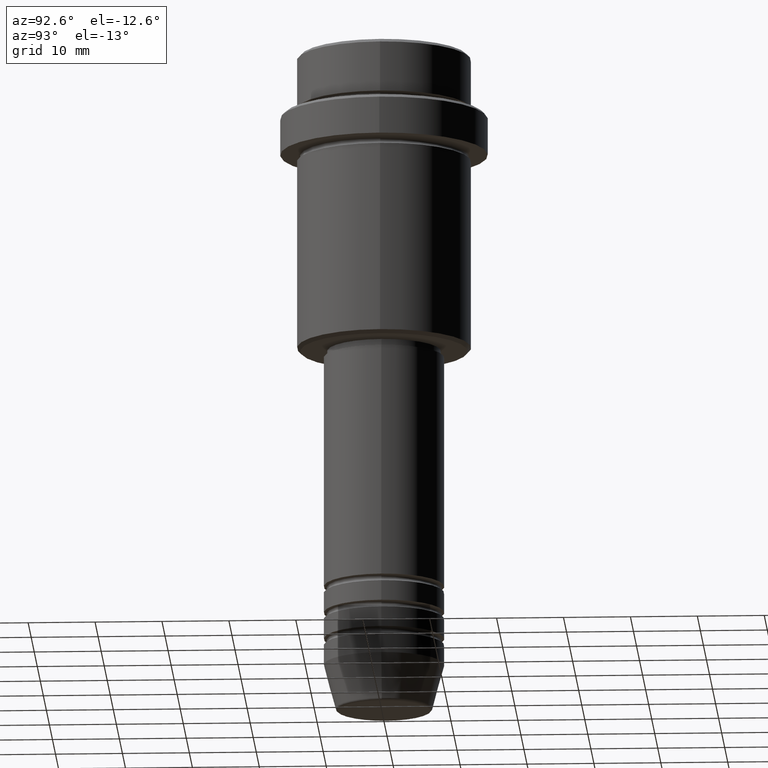
[diagram: clean part render]
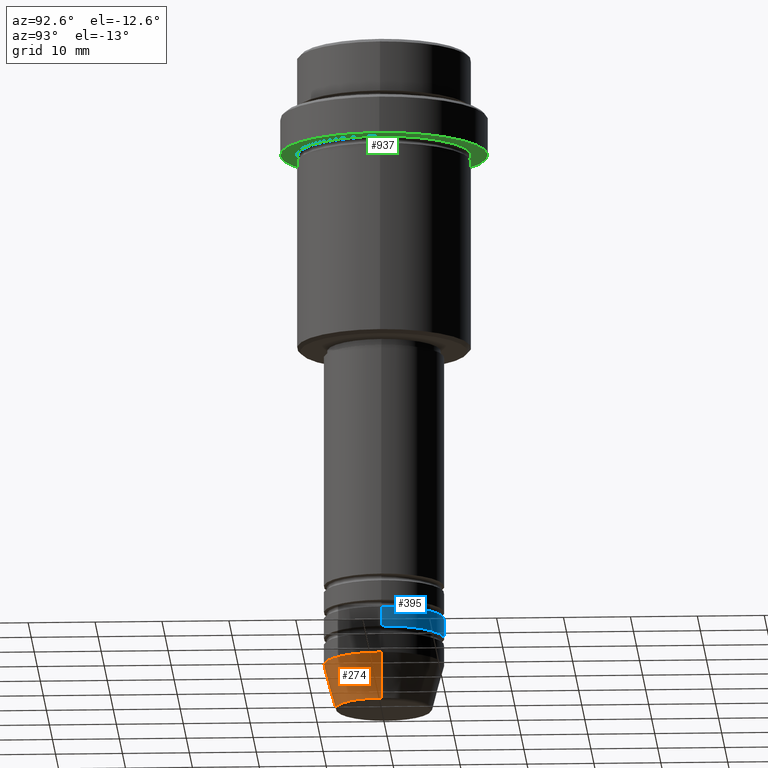
[diagram: same view with three faces highlighted in distinct colors, each labeled with its STEP entity id]
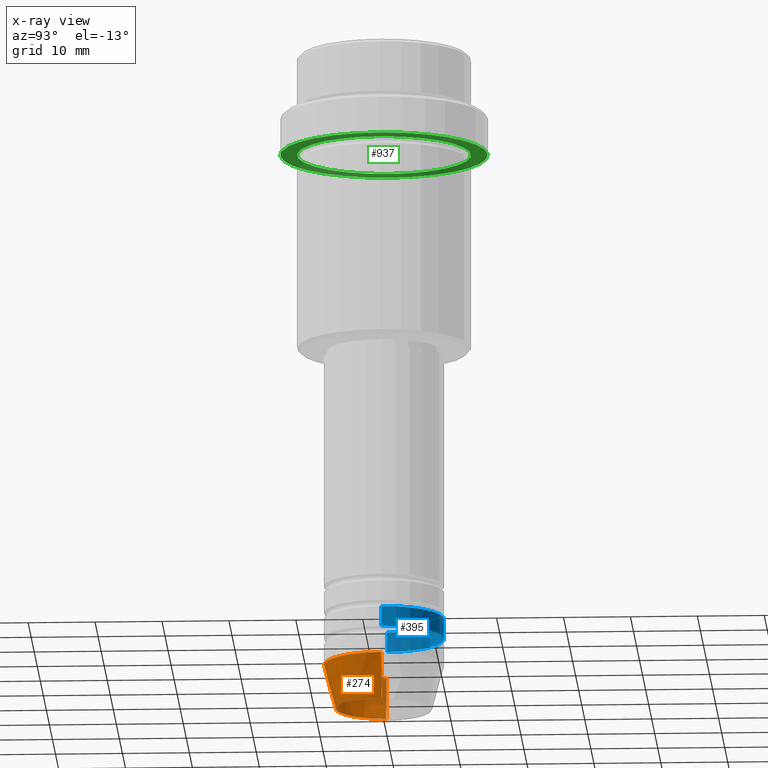
[diagram: x-ray of the same camera — body ghosted, the three highlighted faces saturated]
A machine part, auxiliary view with three faces highlighted in distinct colors.
The next image is the same camera in x-ray (body ghosted, the three faces saturated) — at least one of them is partly hidden behind the body in this view.
Their STEP definitions:

[orange] entity #274 — the highlighted conical surface has half-angle 15 deg.
#31 = DIRECTION ( 'NONE',  ( 0.2588190451025213501, 0.000000000000000000, 0.9659258262890680902 ) ) ;
#36 = VECTOR ( 'NONE', #426, 1000.000000000000000 ) ;
#47 = CARTESIAN_POINT ( 'NONE',  ( 9.000000000000000000, 0.000000000000000000, -93.00000000000000000 ) ) ;
#84 = DIRECTION ( 'NONE',  ( -0.000000000000000000, -0.000000000000000000, 1.000000000000000000 ) ) ;
#123 = ORIENTED_EDGE ( 'NONE', *, *, #322, .F. ) ;
#189 = VERTEX_POINT ( 'NONE', #350 ) ;
#211 = ORIENTED_EDGE ( 'NONE', *, *, #1098, .T. ) ;
#274 = ADVANCED_FACE ( 'NONE', ( #423 ), #1089, .T. ) ;
#294 = CARTESIAN_POINT ( 'NONE',  ( -7.223655072137189492, 9.934123627281765110E-16, -99.62940952255127058 ) ) ;
#318 = CARTESIAN_POINT ( 'NONE',  ( 0.000000000000000000, 0.000000000000000000, -93.00000000000000000 ) ) ;
#322 = EDGE_CURVE ( 'NONE', #1259, #189, #851, .T. ) ;
#333 = DIRECTION ( 'NONE',  ( -0.000000000000000000, -0.000000000000000000, 1.000000000000000000 ) ) ;
#350 = CARTESIAN_POINT ( 'NONE',  ( -9.000000000000000000, 1.102182119232617714E-15, -93.00000000000000000 ) ) ;
#386 = ORIENTED_EDGE ( 'NONE', *, *, #903, .T. ) ;
#423 = FACE_OUTER_BOUND ( 'NONE', #830, .T. ) ;
#426 = DIRECTION ( 'NONE',  ( -0.2588190451025213501, 3.169619151431772337E-17, 0.9659258262890680902 ) ) ;
#442 = DIRECTION ( 'NONE',  ( 1.000000000000000000, 0.000000000000000000, 0.000000000000000000 ) ) ;
#526 = DIRECTION ( 'NONE',  ( 1.000000000000000000, 0.000000000000000000, 0.000000000000000000 ) ) ;
#553 = AXIS2_PLACEMENT_3D ( 'NONE', #634, #84, #526 ) ;
#565 = DIRECTION ( 'NONE',  ( -0.000000000000000000, -0.000000000000000000, 1.000000000000000000 ) ) ;
#574 = CIRCLE ( 'NONE', #1367, 7.223655072137188604 ) ;
#634 = CARTESIAN_POINT ( 'NONE',  ( 0.000000000000000000, 0.000000000000000000, -93.00000000000000000 ) ) ;
#714 = CIRCLE ( 'NONE', #553, 9.000000000000000000 ) ;
#732 = VECTOR ( 'NONE', #31, 1000.000000000000000 ) ;
#742 = CARTESIAN_POINT ( 'NONE',  ( 7.223655072137188604, 0.000000000000000000, -99.62940952255127058 ) ) ;
#780 = CARTESIAN_POINT ( 'NONE',  ( 0.000000000000000000, 0.000000000000000000, -99.62940952255127058 ) ) ;
#830 = EDGE_LOOP ( 'NONE', ( #123, #386, #211, #1320 ) ) ;
#839 = AXIS2_PLACEMENT_3D ( 'NONE', #318, #565, #1198 ) ;
#851 = LINE ( 'NONE', #970, #36 ) ;
#900 = LINE ( 'NONE', #47, #732 ) ;
#903 = EDGE_CURVE ( 'NONE', #1259, #1252, #574, .T. ) ;
#970 = CARTESIAN_POINT ( 'NONE',  ( -9.000000000000000000, 1.102182119232617714E-15, -93.00000000000000000 ) ) ;
#1089 = CONICAL_SURFACE ( 'NONE', #839, 9.000000000000000000, 0.2617993877991500740 ) ;
#1098 = EDGE_CURVE ( 'NONE', #1252, #1306, #900, .T. ) ;
#1198 = DIRECTION ( 'NONE',  ( 1.000000000000000000, 0.000000000000000000, 0.000000000000000000 ) ) ;
#1252 = VERTEX_POINT ( 'NONE', #742 ) ;
#1259 = VERTEX_POINT ( 'NONE', #294 ) ;
#1306 = VERTEX_POINT ( 'NONE', #1389 ) ;
#1312 = EDGE_CURVE ( 'NONE', #189, #1306, #714, .T. ) ;
#1320 = ORIENTED_EDGE ( 'NONE', *, *, #1312, .F. ) ;
#1367 = AXIS2_PLACEMENT_3D ( 'NONE', #780, #333, #442 ) ;
#1389 = CARTESIAN_POINT ( 'NONE',  ( 9.000000000000000000, 0.000000000000000000, -93.00000000000000000 ) ) ;

[blue] entity #395 — the highlighted cylindrical surface (partial cylindrical patch) has radius 9 mm, axis along (-0, -0, 1).
#91 = DIRECTION ( 'NONE',  ( 1.000000000000000000, 0.000000000000000000, 0.000000000000000000 ) ) ;
#190 = DIRECTION ( 'NONE',  ( -0.000000000000000000, -0.000000000000000000, 1.000000000000000000 ) ) ;
#270 = ORIENTED_EDGE ( 'NONE', *, *, #1308, .T. ) ;
#319 = VECTOR ( 'NONE', #1041, 1000.000000000000000 ) ;
#391 = VERTEX_POINT ( 'NONE', #739 ) ;
#395 = ADVANCED_FACE ( 'NONE', ( #513 ), #507, .T. ) ;
#419 = DIRECTION ( 'NONE',  ( -0.000000000000000000, -0.000000000000000000, 1.000000000000000000 ) ) ;
#465 = EDGE_LOOP ( 'NONE', ( #270, #1156, #960, #573 ) ) ;
#507 = CYLINDRICAL_SURFACE ( 'NONE', #521, 9.000000000000000000 ) ;
#513 = FACE_OUTER_BOUND ( 'NONE', #465, .T. ) ;
#516 = LINE ( 'NONE', #949, #319 ) ;
#521 = AXIS2_PLACEMENT_3D ( 'NONE', #963, #419, #835 ) ;
#568 = EDGE_CURVE ( 'NONE', #783, #391, #672, .T. ) ;
#573 = ORIENTED_EDGE ( 'NONE', *, *, #1283, .F. ) ;
#643 = VERTEX_POINT ( 'NONE', #1013 ) ;
#647 = CARTESIAN_POINT ( 'NONE',  ( -9.000000000000000000, 1.102182119232617714E-15, -88.99999999999988631 ) ) ;
#672 = LINE ( 'NONE', #787, #1065 ) ;
#684 = EDGE_CURVE ( 'NONE', #643, #391, #1212, .T. ) ;
#739 = CARTESIAN_POINT ( 'NONE',  ( -9.000000000000000000, 1.102182119232617714E-15, -85.99999999999988631 ) ) ;
#783 = VERTEX_POINT ( 'NONE', #647 ) ;
#787 = CARTESIAN_POINT ( 'NONE',  ( -9.000000000000000000, 1.102182119232617714E-15, 0.000000000000000000 ) ) ;
#800 = CIRCLE ( 'NONE', #984, 9.000000000000000000 ) ;
#822 = DIRECTION ( 'NONE',  ( -0.000000000000000000, -0.000000000000000000, 1.000000000000000000 ) ) ;
#835 = DIRECTION ( 'NONE',  ( 1.000000000000000000, 0.000000000000000000, 0.000000000000000000 ) ) ;
#883 = DIRECTION ( 'NONE',  ( -0.000000000000000000, -0.000000000000000000, 1.000000000000000000 ) ) ;
#949 = CARTESIAN_POINT ( 'NONE',  ( 9.000000000000000000, 0.000000000000000000, 0.000000000000000000 ) ) ;
#960 = ORIENTED_EDGE ( 'NONE', *, *, #684, .F. ) ;
#963 = CARTESIAN_POINT ( 'NONE',  ( 0.000000000000000000, 0.000000000000000000, 0.000000000000000000 ) ) ;
#984 = AXIS2_PLACEMENT_3D ( 'NONE', #1177, #190, #91 ) ;
#1013 = CARTESIAN_POINT ( 'NONE',  ( 9.000000000000000000, 0.000000000000000000, -85.99999999999988631 ) ) ;
#1017 = CARTESIAN_POINT ( 'NONE',  ( 0.000000000000000000, 0.000000000000000000, -85.99999999999988631 ) ) ;
#1041 = DIRECTION ( 'NONE',  ( -0.000000000000000000, -0.000000000000000000, 1.000000000000000000 ) ) ;
#1043 = AXIS2_PLACEMENT_3D ( 'NONE', #1017, #822, #1258 ) ;
#1065 = VECTOR ( 'NONE', #883, 1000.000000000000000 ) ;
#1156 = ORIENTED_EDGE ( 'NONE', *, *, #568, .T. ) ;
#1177 = CARTESIAN_POINT ( 'NONE',  ( 0.000000000000000000, 0.000000000000000000, -88.99999999999988631 ) ) ;
#1182 = CARTESIAN_POINT ( 'NONE',  ( 9.000000000000000000, 0.000000000000000000, -88.99999999999988631 ) ) ;
#1212 = CIRCLE ( 'NONE', #1043, 9.000000000000000000 ) ;
#1214 = VERTEX_POINT ( 'NONE', #1182 ) ;
#1258 = DIRECTION ( 'NONE',  ( 1.000000000000000000, 0.000000000000000000, 0.000000000000000000 ) ) ;
#1283 = EDGE_CURVE ( 'NONE', #1214, #643, #516, .T. ) ;
#1308 = EDGE_CURVE ( 'NONE', #1214, #783, #800, .T. ) ;

[green] entity #937 — the highlighted planar face has unit normal (0, 0, -1).
#10 = DIRECTION ( 'NONE',  ( -1.000000000000000000, 0.000000000000000000, 0.000000000000000000 ) ) ;
#11 = DIRECTION ( 'NONE',  ( 0.000000000000000000, 0.000000000000000000, -1.000000000000000000 ) ) ;
#13 = ORIENTED_EDGE ( 'NONE', *, *, #260, .T. ) ;
#24 = DIRECTION ( 'NONE',  ( -1.000000000000000000, 0.000000000000000000, -0.000000000000000000 ) ) ;
#81 = CIRCLE ( 'NONE', #406, 15.50000000000000000 ) ;
#82 = VERTEX_POINT ( 'NONE', #323 ) ;
#113 = DIRECTION ( 'NONE',  ( -0.000000000000000000, -0.000000000000000000, 1.000000000000000000 ) ) ;
#129 = AXIS2_PLACEMENT_3D ( 'NONE', #682, #11, #24 ) ;
#177 = CARTESIAN_POINT ( 'NONE',  ( -15.50000000000000000, 1.898202538678397557E-15, -15.00000000000000000 ) ) ;
#199 = CARTESIAN_POINT ( 'NONE',  ( -12.99999999999999645, 0.000000000000000000, -15.00000000000000000 ) ) ;
#220 = FACE_OUTER_BOUND ( 'NONE', #470, .T. ) ;
#260 = EDGE_CURVE ( 'NONE', #447, #1240, #1322, .T. ) ;
#323 = CARTESIAN_POINT ( 'NONE',  ( 15.50000000000000000, 0.000000000000000000, -15.00000000000000000 ) ) ;
#324 = ORIENTED_EDGE ( 'NONE', *, *, #1100, .F. ) ;
#325 = CARTESIAN_POINT ( 'NONE',  ( 0.000000000000000000, 0.000000000000000000, -15.00000000000000000 ) ) ;
#336 = EDGE_CURVE ( 'NONE', #1240, #447, #819, .T. ) ;
#346 = AXIS2_PLACEMENT_3D ( 'NONE', #910, #695, #1130 ) ;
#347 = CARTESIAN_POINT ( 'NONE',  ( 0.000000000000000000, 0.000000000000000000, -15.00000000000000000 ) ) ;
#406 = AXIS2_PLACEMENT_3D ( 'NONE', #347, #577, #1008 ) ;
#447 = VERTEX_POINT ( 'NONE', #993 ) ;
#470 = EDGE_LOOP ( 'NONE', ( #619, #324 ) ) ;
#485 = EDGE_CURVE ( 'NONE', #82, #1366, #81, .T. ) ;
#520 = CARTESIAN_POINT ( 'NONE',  ( 0.000000000000000000, 0.000000000000000000, -15.00000000000000000 ) ) ;
#576 = CIRCLE ( 'NONE', #346, 15.50000000000000000 ) ;
#577 = DIRECTION ( 'NONE',  ( -0.000000000000000000, -0.000000000000000000, 1.000000000000000000 ) ) ;
#592 = AXIS2_PLACEMENT_3D ( 'NONE', #520, #1281, #955 ) ;
#619 = ORIENTED_EDGE ( 'NONE', *, *, #485, .F. ) ;
#653 = PLANE ( 'NONE',  #129 ) ;
#682 = CARTESIAN_POINT ( 'NONE',  ( 0.000000000000000000, 15.50000000000000000, -15.00000000000000000 ) ) ;
#695 = DIRECTION ( 'NONE',  ( -0.000000000000000000, -0.000000000000000000, 1.000000000000000000 ) ) ;
#704 = AXIS2_PLACEMENT_3D ( 'NONE', #325, #113, #10 ) ;
#719 = ORIENTED_EDGE ( 'NONE', *, *, #336, .T. ) ;
#819 = CIRCLE ( 'NONE', #592, 12.99999999999999645 ) ;
#836 = EDGE_LOOP ( 'NONE', ( #719, #13 ) ) ;
#910 = CARTESIAN_POINT ( 'NONE',  ( 0.000000000000000000, 0.000000000000000000, -15.00000000000000000 ) ) ;
#937 = ADVANCED_FACE ( 'NONE', ( #1199, #220 ), #653, .T. ) ;
#955 = DIRECTION ( 'NONE',  ( -1.000000000000000000, 0.000000000000000000, 0.000000000000000000 ) ) ;
#993 = CARTESIAN_POINT ( 'NONE',  ( 12.99999999999999645, 1.592040838891558701E-15, -15.00000000000000000 ) ) ;
#1008 = DIRECTION ( 'NONE',  ( 1.000000000000000000, 0.000000000000000000, 0.000000000000000000 ) ) ;
#1100 = EDGE_CURVE ( 'NONE', #1366, #82, #576, .T. ) ;
#1130 = DIRECTION ( 'NONE',  ( 1.000000000000000000, 0.000000000000000000, 0.000000000000000000 ) ) ;
#1199 = FACE_BOUND ( 'NONE', #836, .T. ) ;
#1240 = VERTEX_POINT ( 'NONE', #199 ) ;
#1281 = DIRECTION ( 'NONE',  ( -0.000000000000000000, -0.000000000000000000, 1.000000000000000000 ) ) ;
#1322 = CIRCLE ( 'NONE', #704, 12.99999999999999645 ) ;
#1366 = VERTEX_POINT ( 'NONE', #177 ) ;